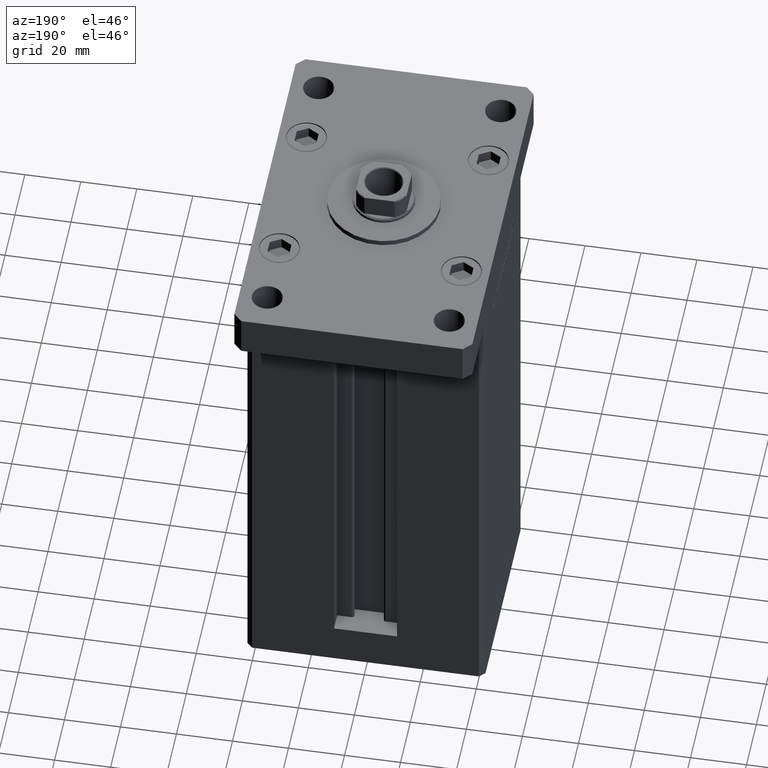
[diagram: clean part render]
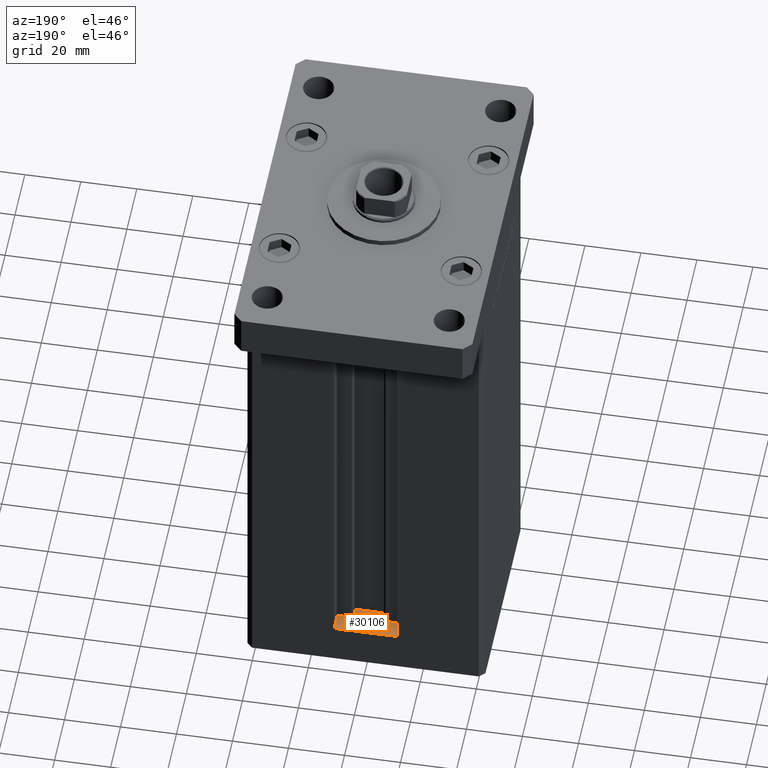
[diagram: same view with one face highlighted and labeled with its STEP entity id]
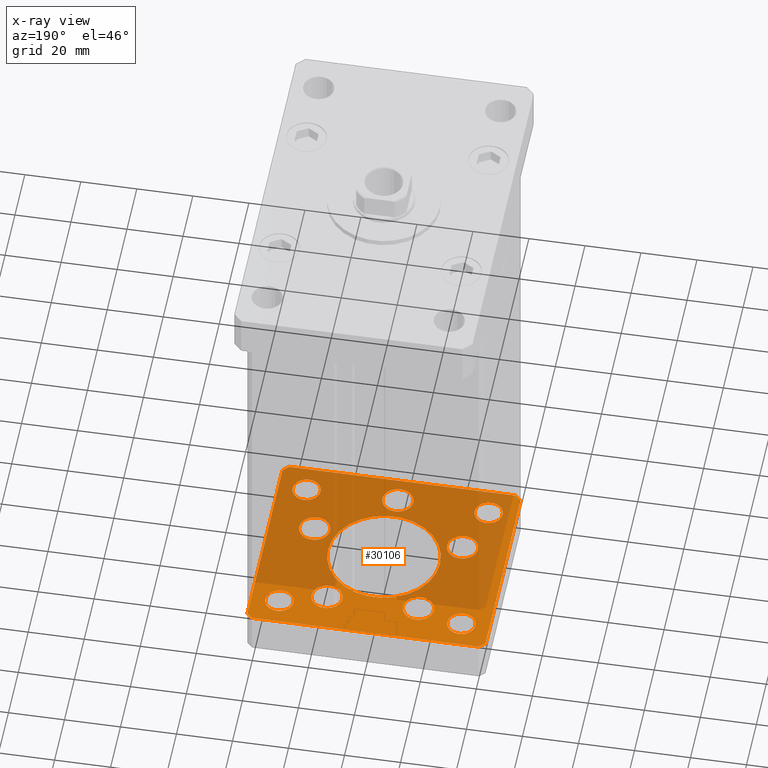
[diagram: x-ray of the same camera — body ghosted, the highlighted face saturated]
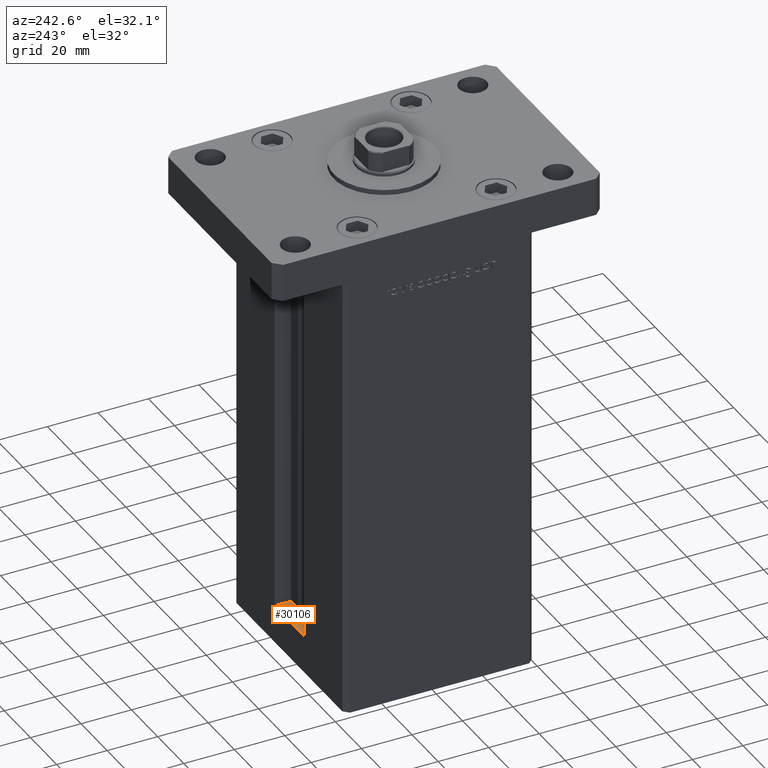
[diagram: same view with one face highlighted and labeled with its STEP entity id]
A machine part, auxiliary view. The second image highlights one B-rep face of the part: STEP entity #30106.
The next image is the same camera in x-ray: the body ghosted, the highlighted face saturated — about 68% of this face is hidden behind the body in this view.
A second angle (auxiliary view) of the same face is appended — the face is thin or edge-on in the first view.
In plain terms, the highlighted planar face has unit normal (0, 0, -1).
Its self-contained STEP definition (entity closure, byte-faithful):
#75 = EDGE_CURVE ( 'NONE', #22599, #15443, #26246, .T. ) ;
#675 = VECTOR ( 'NONE', #39506, 1000.000000000000000 ) ;
#745 = CIRCLE ( 'NONE', #33622, 5.000000000000000888 ) ;
#890 = EDGE_CURVE ( 'NONE', #6742, #45250, #14278, .T. ) ;
#921 = EDGE_CURVE ( 'NONE', #9851, #4593, #45382, .T. ) ;
#922 = EDGE_LOOP ( 'NONE', ( #2285, #26605 ) ) ;
#1005 = ORIENTED_EDGE ( 'NONE', *, *, #43276, .F. ) ;
#1210 = AXIS2_PLACEMENT_3D ( 'NONE', #12710, #41706, #4583 ) ;
#1306 = ORIENTED_EDGE ( 'NONE', *, *, #51527, .F. ) ;
#2218 = EDGE_LOOP ( 'NONE', ( #42275, #41872, #53542, #22247, #1005, #27108, #1306, #31997 ) ) ;
#2285 = ORIENTED_EDGE ( 'NONE', *, *, #40159, .F. ) ;
#2453 = DIRECTION ( 'NONE',  ( 0.000000000000000000, -0.000000000000000000, -1.000000000000000000 ) ) ;
#2476 = CARTESIAN_POINT ( 'NONE',  ( 40.49999999999991473, 37.50000000000000711, -15.00000000000000000 ) ) ;
#2622 = DIRECTION ( 'NONE',  ( 1.000000000000000000, 0.000000000000000000, 0.000000000000000000 ) ) ;
#2898 = DIRECTION ( 'NONE',  ( 0.000000000000000000, 0.000000000000000000, 1.000000000000000000 ) ) ;
#2925 = AXIS2_PLACEMENT_3D ( 'NONE', #51716, #31354, #9971 ) ;
#3113 = CIRCLE ( 'NONE', #8271, 5.500000000000000000 ) ;
#3222 = CIRCLE ( 'NONE', #6702, 5.000000000000000888 ) ;
#3646 = EDGE_CURVE ( 'NONE', #32618, #25002, #38415, .T. ) ;
#3767 = ORIENTED_EDGE ( 'NONE', *, *, #15533, .T. ) ;
#3775 = FACE_BOUND ( 'NONE', #20649, .T. ) ;
#3991 = AXIS2_PLACEMENT_3D ( 'NONE', #45703, #29426, #25372 ) ;
#4027 = ORIENTED_EDGE ( 'NONE', *, *, #921, .T. ) ;
#4226 = VERTEX_POINT ( 'NONE', #34851 ) ;
#4543 = VERTEX_POINT ( 'NONE', #37921 ) ;
#4583 = DIRECTION ( 'NONE',  ( -1.000000000000000000, 0.000000000000000000, 0.000000000000000000 ) ) ;
#4593 = VERTEX_POINT ( 'NONE', #25746 ) ;
#5094 = CARTESIAN_POINT ( 'NONE',  ( 26.39865316429776954, -9.333333333333330373, -15.00000000000000000 ) ) ;
#5341 = CARTESIAN_POINT ( 'NONE',  ( 37.50000000000000000, -27.49999999999999645, -15.00000000000000000 ) ) ;
#5814 = ORIENTED_EDGE ( 'NONE', *, *, #47601, .T. ) ;
#6230 = CARTESIAN_POINT ( 'NONE',  ( 16.32291334290542295, 22.75000000000000000, -15.00000000000000000 ) ) ;
#6255 = EDGE_LOOP ( 'NONE', ( #15846, #33872 ) ) ;
#6578 = DIRECTION ( 'NONE',  ( 1.000000000000000000, 0.000000000000000000, 0.000000000000000000 ) ) ;
#6702 = AXIS2_PLACEMENT_3D ( 'NONE', #42494, #18369, #43298 ) ;
#6710 = DIRECTION ( 'NONE',  ( 0.7071067811865463515, -0.7071067811865487940, 0.000000000000000000 ) ) ;
#6742 = VERTEX_POINT ( 'NONE', #14016 ) ;
#7032 = DIRECTION ( 'NONE',  ( 1.000000000000000000, 0.000000000000000000, 0.000000000000000000 ) ) ;
#7058 = AXIS2_PLACEMENT_3D ( 'NONE', #29716, #37574, #34788 ) ;
#7205 = AXIS2_PLACEMENT_3D ( 'NONE', #21701, #50447, #30107 ) ;
#7644 = EDGE_CURVE ( 'NONE', #19867, #4226, #24691, .T. ) ;
#7822 = CARTESIAN_POINT ( 'NONE',  ( 0.000000000000000000, 0.000000000000000000, -15.00000000000000000 ) ) ;
#8011 = EDGE_CURVE ( 'NONE', #15443, #22599, #3113, .T. ) ;
#8131 = CARTESIAN_POINT ( 'NONE',  ( 40.50000000000000000, -37.50000000000000711, -15.00000000000000000 ) ) ;
#8271 = AXIS2_PLACEMENT_3D ( 'NONE', #35032, #26913, #32823 ) ;
#8558 = AXIS2_PLACEMENT_3D ( 'NONE', #36894, #36629, #49651 ) ;
#8601 = CARTESIAN_POINT ( 'NONE',  ( 5.500000000000003553, -28.00000000000000000, -15.00000000000000000 ) ) ;
#9530 = CARTESIAN_POINT ( 'NONE',  ( 10.82291334290542473, 22.75000000000000000, -15.00000000000000000 ) ) ;
#9693 = VECTOR ( 'NONE', #52337, 1000.000000000000000 ) ;
#9851 = VERTEX_POINT ( 'NONE', #18562 ) ;
#9971 = DIRECTION ( 'NONE',  ( 1.000000000000000000, 0.000000000000000000, 0.000000000000000000 ) ) ;
#10075 = CIRCLE ( 'NONE', #45552, 5.500000000000001776 ) ;
#10087 = CARTESIAN_POINT ( 'NONE',  ( -21.82291334290543361, 22.74999999999999645, -15.00000000000000000 ) ) ;
#10112 = AXIS2_PLACEMENT_3D ( 'NONE', #11108, #2453, #43903 ) ;
#10176 = DIRECTION ( 'NONE',  ( 0.000000000000000000, -0.000000000000000000, -1.000000000000000000 ) ) ;
#10968 = CIRCLE ( 'NONE', #10112, 5.500000000000000000 ) ;
#11104 = DIRECTION ( 'NONE',  ( 0.000000000000000000, -0.000000000000000000, -1.000000000000000000 ) ) ;
#11108 = CARTESIAN_POINT ( 'NONE',  ( 3.429011037612589276E-15, -28.00000000000000000, -15.00000000000000000 ) ) ;
#11109 = FACE_OUTER_BOUND ( 'NONE', #2218, .T. ) ;
#11158 = CARTESIAN_POINT ( 'NONE',  ( 42.49999999999992895, 35.50000000000000000, -15.00000000000000000 ) ) ;
#11984 = CIRCLE ( 'NONE', #8558, 5.000000000000004441 ) ;
#12181 = EDGE_CURVE ( 'NONE', #44923, #41812, #3222, .T. ) ;
#12194 = CIRCLE ( 'NONE', #46788, 20.00000000000000000 ) ;
#12320 = DIRECTION ( 'NONE',  ( -1.000000000000000000, 0.000000000000000000, 0.000000000000000000 ) ) ;
#12458 = AXIS2_PLACEMENT_3D ( 'NONE', #7822, #44965, #28171 ) ;
#12710 = CARTESIAN_POINT ( 'NONE',  ( -32.50000000000000000, -27.49999999999999645, -15.00000000000000000 ) ) ;
#13350 = VERTEX_POINT ( 'NONE', #51403 ) ;
#13464 = DIRECTION ( 'NONE',  ( 0.000000000000000000, -0.000000000000000000, -1.000000000000000000 ) ) ;
#13579 = AXIS2_PLACEMENT_3D ( 'NONE', #30527, #21875, #47071 ) ;
#13749 = DIRECTION ( 'NONE',  ( 1.000000000000000000, 0.000000000000000000, 0.000000000000000000 ) ) ;
#13851 = EDGE_LOOP ( 'NONE', ( #40425, #33667 ) ) ;
#13969 = CIRCLE ( 'NONE', #7058, 4.999999999999997335 ) ;
#14016 = CARTESIAN_POINT ( 'NONE',  ( -42.50000000000000711, 35.49999999999997158, -15.00000000000000000 ) ) ;
#14236 = DIRECTION ( 'NONE',  ( 0.7071067811865474617, 0.7071067811865474617, 0.000000000000000000 ) ) ;
#14278 = LINE ( 'NONE', #39474, #41825 ) ;
#14656 = CARTESIAN_POINT ( 'NONE',  ( -40.50000000000000711, 37.49999999999997868, -15.00000000000000000 ) ) ;
#14699 = CARTESIAN_POINT ( 'NONE',  ( -32.50000000000000000, 27.50000000000000355, -15.00000000000000000 ) ) ;
#14913 = LINE ( 'NONE', #18722, #9693 ) ;
#15443 = VERTEX_POINT ( 'NONE', #48194 ) ;
#15533 = EDGE_CURVE ( 'NONE', #4593, #9851, #16480, .T. ) ;
#15562 = EDGE_CURVE ( 'NONE', #4226, #19867, #12194, .T. ) ;
#15695 = CARTESIAN_POINT ( 'NONE',  ( -37.50000000000000711, 27.50000000000000355, -15.00000000000000000 ) ) ;
#15846 = ORIENTED_EDGE ( 'NONE', *, *, #7644, .F. ) ;
#16049 = ORIENTED_EDGE ( 'NONE', *, *, #47634, .F. ) ;
#16067 = CARTESIAN_POINT ( 'NONE',  ( -27.50000000000000000, -27.49999999999999645, -15.00000000000000000 ) ) ;
#16159 = CARTESIAN_POINT ( 'NONE',  ( -42.50000000000000000, -35.50000000000000711, -15.00000000000000000 ) ) ;
#16433 = DIRECTION ( 'NONE',  ( 1.000000000000000000, 0.000000000000000000, 0.000000000000000000 ) ) ;
#16480 = CIRCLE ( 'NONE', #24309, 4.999999999999997335 ) ;
#16946 = CIRCLE ( 'NONE', #24773, 4.999999999999997335 ) ;
#17580 = EDGE_LOOP ( 'NONE', ( #4027, #3767 ) ) ;
#17903 = VERTEX_POINT ( 'NONE', #47525 ) ;
#18369 = DIRECTION ( 'NONE',  ( 0.000000000000000000, 0.000000000000000000, 1.000000000000000000 ) ) ;
#18426 = CARTESIAN_POINT ( 'NONE',  ( 40.49999999999991473, 37.50000000000000711, -15.00000000000000000 ) ) ;
#18438 = EDGE_CURVE ( 'NONE', #13350, #18852, #14913, .T. ) ;
#18466 = CIRCLE ( 'NONE', #7205, 5.499999999999998224 ) ;
#18562 = CARTESIAN_POINT ( 'NONE',  ( 37.50000000000000000, 27.49999999999999645, -15.00000000000000000 ) ) ;
#18613 = DIRECTION ( 'NONE',  ( 9.773090005503140331E-17, -1.000000000000000000, 0.000000000000000000 ) ) ;
#18722 = CARTESIAN_POINT ( 'NONE',  ( 42.50000000000000711, -35.50000000000000000, -15.00000000000000000 ) ) ;
#18852 = VERTEX_POINT ( 'NONE', #41116 ) ;
#18902 = LINE ( 'NONE', #34893, #32542 ) ;
#18934 = VERTEX_POINT ( 'NONE', #39117 ) ;
#19005 = EDGE_CURVE ( 'NONE', #32932, #42543, #13969, .T. ) ;
#19145 = DIRECTION ( 'NONE',  ( 1.000000000000000000, 0.000000000000000000, 0.000000000000000000 ) ) ;
#19183 = VERTEX_POINT ( 'NONE', #9530 ) ;
#19867 = VERTEX_POINT ( 'NONE', #45401 ) ;
#20035 = FACE_BOUND ( 'NONE', #922, .T. ) ;
#20285 = LINE ( 'NONE', #11158, #32645 ) ;
#20360 = ORIENTED_EDGE ( 'NONE', *, *, #12181, .T. ) ;
#20470 = CARTESIAN_POINT ( 'NONE',  ( 32.50000000000000000, -27.49999999999999645, -15.00000000000000000 ) ) ;
#20649 = EDGE_LOOP ( 'NONE', ( #38576, #24960 ) ) ;
#21701 = CARTESIAN_POINT ( 'NONE',  ( 26.39865316429776954, -9.333333333333330373, -15.00000000000000000 ) ) ;
#21875 = DIRECTION ( 'NONE',  ( 0.000000000000000000, -0.000000000000000000, -1.000000000000000000 ) ) ;
#22026 = AXIS2_PLACEMENT_3D ( 'NONE', #35946, #2898, #19145 ) ;
#22247 = ORIENTED_EDGE ( 'NONE', *, *, #35622, .F. ) ;
#22599 = VERTEX_POINT ( 'NONE', #10087 ) ;
#22807 = ORIENTED_EDGE ( 'NONE', *, *, #27626, .F. ) ;
#22822 = EDGE_CURVE ( 'NONE', #42175, #19183, #36487, .T. ) ;
#22873 = EDGE_LOOP ( 'NONE', ( #5814, #20360 ) ) ;
#22990 = LINE ( 'NONE', #23788, #675 ) ;
#23399 = VERTEX_POINT ( 'NONE', #51812 ) ;
#23440 = DIRECTION ( 'NONE',  ( 1.000000000000000000, 0.000000000000000000, 0.000000000000000000 ) ) ;
#23481 = ORIENTED_EDGE ( 'NONE', *, *, #8011, .F. ) ;
#23788 = CARTESIAN_POINT ( 'NONE',  ( -40.49999999999999289, -37.50000000000002132, -15.00000000000000000 ) ) ;
#23928 = VECTOR ( 'NONE', #25862, 1000.000000000000000 ) ;
#24309 = AXIS2_PLACEMENT_3D ( 'NONE', #28910, #32961, #29186 ) ;
#24369 = PLANE ( 'NONE',  #12458 ) ;
#24588 = CARTESIAN_POINT ( 'NONE',  ( 0.000000000000000000, 0.000000000000000000, -15.00000000000000000 ) ) ;
#24691 = CIRCLE ( 'NONE', #38532, 20.00000000000000000 ) ;
#24773 = AXIS2_PLACEMENT_3D ( 'NONE', #20470, #53541, #12320 ) ;
#24960 = ORIENTED_EDGE ( 'NONE', *, *, #29427, .F. ) ;
#25002 = VERTEX_POINT ( 'NONE', #16067 ) ;
#25372 = DIRECTION ( 'NONE',  ( 1.000000000000000000, 0.000000000000000000, 0.000000000000000000 ) ) ;
#25560 = CIRCLE ( 'NONE', #47174, 5.499999999999998224 ) ;
#25746 = CARTESIAN_POINT ( 'NONE',  ( 27.50000000000000355, 27.49999999999999645, -15.00000000000000000 ) ) ;
#25821 = DIRECTION ( 'NONE',  ( 0.000000000000000000, -0.000000000000000000, -1.000000000000000000 ) ) ;
#25862 = DIRECTION ( 'NONE',  ( -0.7071067811865463515, -0.7071067811865487940, 0.000000000000000000 ) ) ;
#25905 = EDGE_LOOP ( 'NONE', ( #23481, #52010 ) ) ;
#26246 = CIRCLE ( 'NONE', #44422, 5.500000000000000000 ) ;
#26605 = ORIENTED_EDGE ( 'NONE', *, *, #19005, .F. ) ;
#26913 = DIRECTION ( 'NONE',  ( 0.000000000000000000, -0.000000000000000000, -1.000000000000000000 ) ) ;
#27108 = ORIENTED_EDGE ( 'NONE', *, *, #18438, .F. ) ;
#27110 = LINE ( 'NONE', #18426, #47251 ) ;
#27626 = EDGE_CURVE ( 'NONE', #49347, #18934, #18466, .T. ) ;
#28171 = DIRECTION ( 'NONE',  ( 1.000000000000000000, 0.000000000000000000, 0.000000000000000000 ) ) ;
#28675 = AXIS2_PLACEMENT_3D ( 'NONE', #41471, #13464, #2622 ) ;
#28910 = CARTESIAN_POINT ( 'NONE',  ( 32.50000000000000000, 27.49999999999999645, -15.00000000000000000 ) ) ;
#29186 = DIRECTION ( 'NONE',  ( 1.000000000000000000, 0.000000000000000000, 0.000000000000000000 ) ) ;
#29426 = DIRECTION ( 'NONE',  ( 0.000000000000000000, -0.000000000000000000, -1.000000000000000000 ) ) ;
#29427 = EDGE_CURVE ( 'NONE', #17903, #34351, #53137, .T. ) ;
#29716 = CARTESIAN_POINT ( 'NONE',  ( 32.50000000000000000, -27.49999999999999645, -15.00000000000000000 ) ) ;
#29870 = CARTESIAN_POINT ( 'NONE',  ( -16.32291334290543006, 22.74999999999999645, -15.00000000000000000 ) ) ;
#30030 = CIRCLE ( 'NONE', #13579, 5.499999999999998224 ) ;
#30106 = ADVANCED_FACE ( 'NONE', ( #53385, #3775, #53641, #48508, #32230, #40625, #36302, #41161, #11109, #20035, #37088 ), #24369, .F. ) ;
#30107 = DIRECTION ( 'NONE',  ( 1.000000000000000000, 0.000000000000000000, 0.000000000000000000 ) ) ;
#30527 = CARTESIAN_POINT ( 'NONE',  ( -26.39865316429776954, -9.333333333333337478, -15.00000000000000000 ) ) ;
#30872 = ORIENTED_EDGE ( 'NONE', *, *, #36618, .F. ) ;
#31354 = DIRECTION ( 'NONE',  ( 0.000000000000000000, -0.000000000000000000, -1.000000000000000000 ) ) ;
#31570 = CARTESIAN_POINT ( 'NONE',  ( 0.000000000000000000, 0.000000000000000000, -15.00000000000000000 ) ) ;
#31997 = ORIENTED_EDGE ( 'NONE', *, *, #45180, .F. ) ;
#32150 = VERTEX_POINT ( 'NONE', #8131 ) ;
#32230 = FACE_BOUND ( 'NONE', #13851, .T. ) ;
#32542 = VECTOR ( 'NONE', #6710, 1000.000000000000000 ) ;
#32618 = VERTEX_POINT ( 'NONE', #33992 ) ;
#32645 = VECTOR ( 'NONE', #49552, 1000.000000000000114 ) ;
#32823 = DIRECTION ( 'NONE',  ( 1.000000000000000000, 0.000000000000000000, 0.000000000000000000 ) ) ;
#32932 = VERTEX_POINT ( 'NONE', #46942 ) ;
#32961 = DIRECTION ( 'NONE',  ( 0.000000000000000000, 0.000000000000000000, 1.000000000000000000 ) ) ;
#33368 = EDGE_CURVE ( 'NONE', #18934, #49347, #25560, .T. ) ;
#33622 = AXIS2_PLACEMENT_3D ( 'NONE', #14699, #47776, #6578 ) ;
#33667 = ORIENTED_EDGE ( 'NONE', *, *, #35553, .F. ) ;
#33872 = ORIENTED_EDGE ( 'NONE', *, *, #15562, .F. ) ;
#33992 = CARTESIAN_POINT ( 'NONE',  ( -37.50000000000000711, -27.49999999999999645, -15.00000000000000000 ) ) ;
#34351 = VERTEX_POINT ( 'NONE', #52087 ) ;
#34788 = DIRECTION ( 'NONE',  ( -1.000000000000000000, 0.000000000000000000, 0.000000000000000000 ) ) ;
#34851 = CARTESIAN_POINT ( 'NONE',  ( -20.00000000000000000, 2.449293598294706513E-15, -15.00000000000000000 ) ) ;
#34893 = CARTESIAN_POINT ( 'NONE',  ( -42.50000000000000000, -35.50000000000000711, -15.00000000000000000 ) ) ;
#35032 = CARTESIAN_POINT ( 'NONE',  ( -16.32291334290543006, 22.74999999999999645, -15.00000000000000000 ) ) ;
#35371 = LINE ( 'NONE', #47836, #50345 ) ;
#35491 = DIRECTION ( 'NONE',  ( -1.000000000000000000, -3.426614273534436165E-16, 0.000000000000000000 ) ) ;
#35553 = EDGE_CURVE ( 'NONE', #19183, #42175, #10075, .T. ) ;
#35622 = EDGE_CURVE ( 'NONE', #38413, #38486, #27110, .T. ) ;
#35897 = EDGE_CURVE ( 'NONE', #45250, #4543, #18902, .T. ) ;
#35946 = CARTESIAN_POINT ( 'NONE',  ( 32.50000000000000000, 27.49999999999999645, -15.00000000000000000 ) ) ;
#36235 = EDGE_CURVE ( 'NONE', #23399, #39885, #50742, .T. ) ;
#36302 = FACE_BOUND ( 'NONE', #17580, .T. ) ;
#36487 = CIRCLE ( 'NONE', #28675, 5.500000000000001776 ) ;
#36618 = EDGE_CURVE ( 'NONE', #39885, #23399, #10968, .T. ) ;
#36629 = DIRECTION ( 'NONE',  ( -0.000000000000000000, -0.000000000000000000, -1.000000000000000000 ) ) ;
#36894 = CARTESIAN_POINT ( 'NONE',  ( -32.50000000000000000, -27.49999999999999645, -15.00000000000000000 ) ) ;
#37088 = FACE_BOUND ( 'NONE', #37251, .T. ) ;
#37138 = EDGE_CURVE ( 'NONE', #38486, #6742, #45912, .T. ) ;
#37251 = EDGE_LOOP ( 'NONE', ( #16049, #50955 ) ) ;
#37574 = DIRECTION ( 'NONE',  ( -0.000000000000000000, -0.000000000000000000, -1.000000000000000000 ) ) ;
#37921 = CARTESIAN_POINT ( 'NONE',  ( -40.49999999999999289, -37.50000000000002132, -15.00000000000000000 ) ) ;
#38137 = DIRECTION ( 'NONE',  ( 0.000000000000000000, -0.000000000000000000, -1.000000000000000000 ) ) ;
#38413 = VERTEX_POINT ( 'NONE', #2476 ) ;
#38415 = CIRCLE ( 'NONE', #1210, 5.000000000000004441 ) ;
#38486 = VERTEX_POINT ( 'NONE', #14656 ) ;
#38532 = AXIS2_PLACEMENT_3D ( 'NONE', #31570, #10176, #23440 ) ;
#38576 = ORIENTED_EDGE ( 'NONE', *, *, #42695, .F. ) ;
#38795 = CARTESIAN_POINT ( 'NONE',  ( 20.89865316429777309, -9.333333333333330373, -15.00000000000000000 ) ) ;
#39117 = CARTESIAN_POINT ( 'NONE',  ( 31.89865316429776954, -9.333333333333330373, -15.00000000000000000 ) ) ;
#39474 = CARTESIAN_POINT ( 'NONE',  ( -42.50000000000000711, 35.49999999999997158, -15.00000000000000000 ) ) ;
#39506 = DIRECTION ( 'NONE',  ( 1.000000000000000000, 1.713307136767217096E-16, 0.000000000000000000 ) ) ;
#39885 = VERTEX_POINT ( 'NONE', #8601 ) ;
#40159 = EDGE_CURVE ( 'NONE', #42543, #32932, #16946, .T. ) ;
#40425 = ORIENTED_EDGE ( 'NONE', *, *, #22822, .F. ) ;
#40625 = FACE_BOUND ( 'NONE', #25905, .T. ) ;
#40654 = CARTESIAN_POINT ( 'NONE',  ( 21.82291334290542650, 22.75000000000000000, -15.00000000000000000 ) ) ;
#41116 = CARTESIAN_POINT ( 'NONE',  ( 42.49999999999992895, 35.50000000000000000, -15.00000000000000000 ) ) ;
#41161 = FACE_BOUND ( 'NONE', #22873, .T. ) ;
#41471 = CARTESIAN_POINT ( 'NONE',  ( 16.32291334290542295, 22.75000000000000000, -15.00000000000000000 ) ) ;
#41489 = ORIENTED_EDGE ( 'NONE', *, *, #36235, .F. ) ;
#41706 = DIRECTION ( 'NONE',  ( -0.000000000000000000, -0.000000000000000000, -1.000000000000000000 ) ) ;
#41812 = VERTEX_POINT ( 'NONE', #51773 ) ;
#41825 = VECTOR ( 'NONE', #18613, 1000.000000000000000 ) ;
#41872 = ORIENTED_EDGE ( 'NONE', *, *, #890, .F. ) ;
#42113 = CARTESIAN_POINT ( 'NONE',  ( -40.50000000000000711, 37.49999999999997868, -15.00000000000000000 ) ) ;
#42175 = VERTEX_POINT ( 'NONE', #40654 ) ;
#42275 = ORIENTED_EDGE ( 'NONE', *, *, #35897, .F. ) ;
#42494 = CARTESIAN_POINT ( 'NONE',  ( -32.50000000000000000, 27.50000000000000355, -15.00000000000000000 ) ) ;
#42543 = VERTEX_POINT ( 'NONE', #5341 ) ;
#42695 = EDGE_CURVE ( 'NONE', #34351, #17903, #30030, .T. ) ;
#43100 = EDGE_LOOP ( 'NONE', ( #30872, #41489 ) ) ;
#43276 = EDGE_CURVE ( 'NONE', #18852, #38413, #20285, .T. ) ;
#43298 = DIRECTION ( 'NONE',  ( 1.000000000000000000, 0.000000000000000000, 0.000000000000000000 ) ) ;
#43903 = DIRECTION ( 'NONE',  ( 1.000000000000000000, 0.000000000000000000, 0.000000000000000000 ) ) ;
#44422 = AXIS2_PLACEMENT_3D ( 'NONE', #29870, #25821, #50752 ) ;
#44923 = VERTEX_POINT ( 'NONE', #15695 ) ;
#44965 = DIRECTION ( 'NONE',  ( -0.000000000000000000, 0.000000000000000000, 1.000000000000000000 ) ) ;
#45139 = ORIENTED_EDGE ( 'NONE', *, *, #33368, .F. ) ;
#45180 = EDGE_CURVE ( 'NONE', #4543, #32150, #22990, .T. ) ;
#45250 = VERTEX_POINT ( 'NONE', #16159 ) ;
#45382 = CIRCLE ( 'NONE', #22026, 4.999999999999997335 ) ;
#45401 = CARTESIAN_POINT ( 'NONE',  ( 20.00000000000000000, 0.000000000000000000, -15.00000000000000000 ) ) ;
#45552 = AXIS2_PLACEMENT_3D ( 'NONE', #6230, #11104, #7032 ) ;
#45703 = CARTESIAN_POINT ( 'NONE',  ( 3.429011037612589276E-15, -28.00000000000000000, -15.00000000000000000 ) ) ;
#45912 = LINE ( 'NONE', #42113, #23928 ) ;
#46788 = AXIS2_PLACEMENT_3D ( 'NONE', #24588, #49793, #16433 ) ;
#46942 = CARTESIAN_POINT ( 'NONE',  ( 27.50000000000000355, -27.49999999999999645, -15.00000000000000000 ) ) ;
#47071 = DIRECTION ( 'NONE',  ( 1.000000000000000000, 0.000000000000000000, 0.000000000000000000 ) ) ;
#47174 = AXIS2_PLACEMENT_3D ( 'NONE', #5094, #38137, #13749 ) ;
#47251 = VECTOR ( 'NONE', #35491, 1000.000000000000000 ) ;
#47525 = CARTESIAN_POINT ( 'NONE',  ( -31.89865316429776954, -9.333333333333337478, -15.00000000000000000 ) ) ;
#47601 = EDGE_CURVE ( 'NONE', #41812, #44923, #745, .T. ) ;
#47634 = EDGE_CURVE ( 'NONE', #25002, #32618, #11984, .T. ) ;
#47776 = DIRECTION ( 'NONE',  ( 0.000000000000000000, 0.000000000000000000, 1.000000000000000000 ) ) ;
#47836 = CARTESIAN_POINT ( 'NONE',  ( 40.50000000000000000, -37.50000000000000711, -15.00000000000000000 ) ) ;
#48194 = CARTESIAN_POINT ( 'NONE',  ( -10.82291334290543183, 22.74999999999999645, -15.00000000000000000 ) ) ;
#48508 = FACE_BOUND ( 'NONE', #51098, .T. ) ;
#49347 = VERTEX_POINT ( 'NONE', #38795 ) ;
#49552 = DIRECTION ( 'NONE',  ( -0.7071067811865474617, 0.7071067811865474617, 0.000000000000000000 ) ) ;
#49651 = DIRECTION ( 'NONE',  ( -1.000000000000000000, 0.000000000000000000, 0.000000000000000000 ) ) ;
#49793 = DIRECTION ( 'NONE',  ( 0.000000000000000000, -0.000000000000000000, -1.000000000000000000 ) ) ;
#50345 = VECTOR ( 'NONE', #14236, 1000.000000000000114 ) ;
#50447 = DIRECTION ( 'NONE',  ( 0.000000000000000000, -0.000000000000000000, -1.000000000000000000 ) ) ;
#50742 = CIRCLE ( 'NONE', #3991, 5.500000000000000000 ) ;
#50752 = DIRECTION ( 'NONE',  ( 1.000000000000000000, 0.000000000000000000, 0.000000000000000000 ) ) ;
#50955 = ORIENTED_EDGE ( 'NONE', *, *, #3646, .F. ) ;
#51098 = EDGE_LOOP ( 'NONE', ( #45139, #22807 ) ) ;
#51403 = CARTESIAN_POINT ( 'NONE',  ( 42.50000000000000711, -35.50000000000000000, -15.00000000000000000 ) ) ;
#51527 = EDGE_CURVE ( 'NONE', #32150, #13350, #35371, .T. ) ;
#51716 = CARTESIAN_POINT ( 'NONE',  ( -26.39865316429776954, -9.333333333333337478, -15.00000000000000000 ) ) ;
#51773 = CARTESIAN_POINT ( 'NONE',  ( -27.50000000000000000, 27.50000000000000355, -15.00000000000000000 ) ) ;
#51812 = CARTESIAN_POINT ( 'NONE',  ( -5.499999999999996447, -28.00000000000000000, -15.00000000000000000 ) ) ;
#52010 = ORIENTED_EDGE ( 'NONE', *, *, #75, .F. ) ;
#52087 = CARTESIAN_POINT ( 'NONE',  ( -20.89865316429777309, -9.333333333333337478, -15.00000000000000000 ) ) ;
#52337 = DIRECTION ( 'NONE',  ( -1.172770800660376741E-15, 1.000000000000000000, 0.000000000000000000 ) ) ;
#53137 = CIRCLE ( 'NONE', #2925, 5.499999999999998224 ) ;
#53385 = FACE_BOUND ( 'NONE', #6255, .T. ) ;
#53541 = DIRECTION ( 'NONE',  ( -0.000000000000000000, -0.000000000000000000, -1.000000000000000000 ) ) ;
#53542 = ORIENTED_EDGE ( 'NONE', *, *, #37138, .F. ) ;
#53641 = FACE_BOUND ( 'NONE', #43100, .T. ) ;